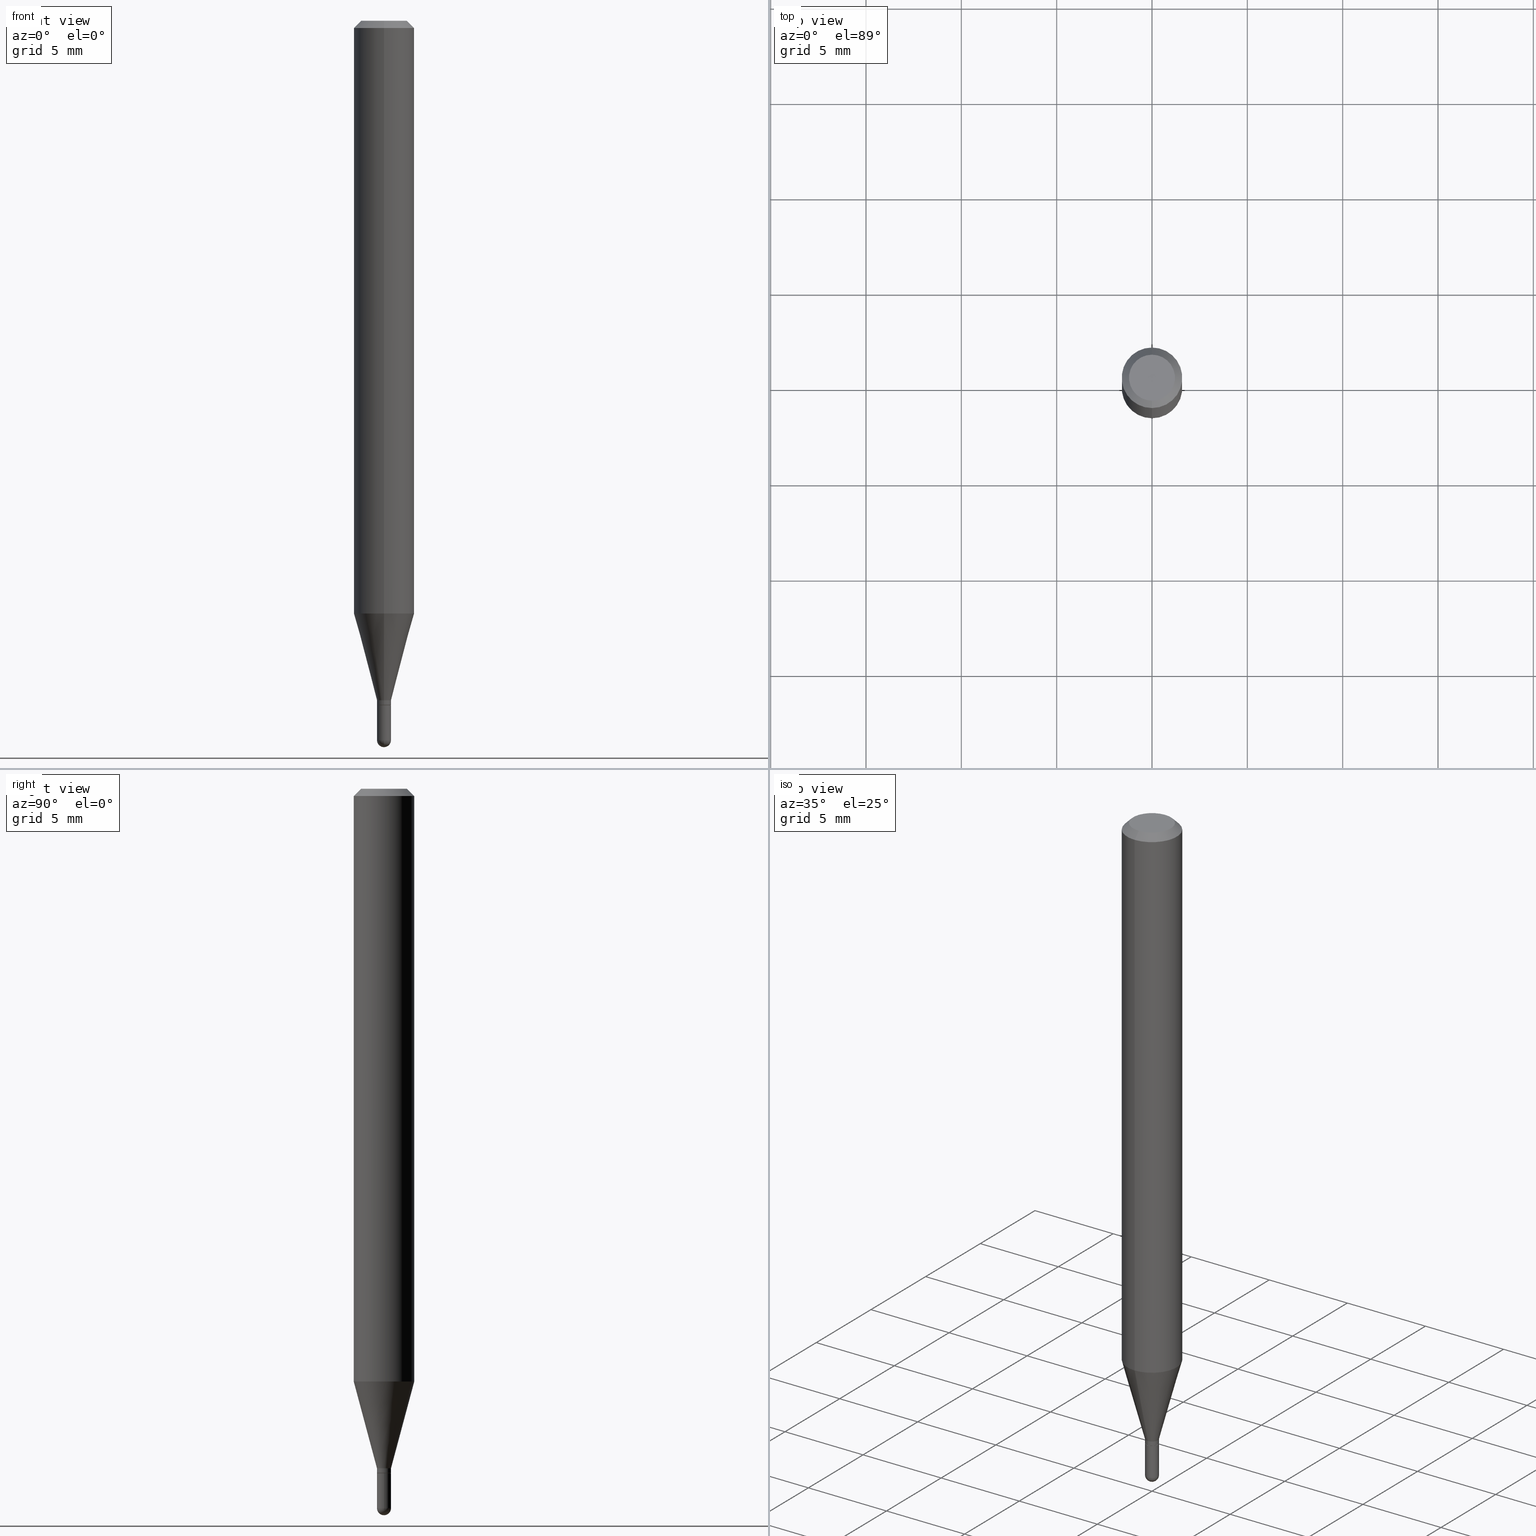
[diagram: canonical four-view strip — front | top / right | iso, engineering-drawing reading convention]
A machine part, canonical four-view strip (front | top / right | iso — engineering-drawing reading convention). The complete STEP part file that produces these views, byte-faithful:
ISO-10303-21;
HEADER;
FILE_DESCRIPTION (( 'STEP AP203' ),
    '1' );
FILE_NAME ('00467.STEP',
    '2024-03-07T17:58:51',
    ( '' ),
    ( '' ),
    'SwSTEP 2.0',
    'SolidWorks 2023',
    '' );
FILE_SCHEMA (( 'CONFIG_CONTROL_DESIGN' ));
ENDSEC;

DATA;
#1 = CIRCLE ( 'NONE', #28, 0.01449999999999992614 ) ;
#2 = AXIS2_PLACEMENT_3D ( 'NONE', #317, #277, #476 ) ;
#3 = LINE ( 'NONE', #252, #338 ) ;
#4 = LINE ( 'NONE', #95, #138 ) ;
#5 = ADVANCED_FACE ( 'NONE', ( #397 ), #146, .T. ) ;
#6 = DIRECTION ( 'NONE',  ( 2.445461630549588864E-29, -3.491491614761661422E-15, -1.000000000000000000 ) ) ;
#7 = CARTESIAN_POINT ( 'NONE',  ( -9.776147748757317543E-17, -0.01400000000000493558, -1.413000000000000256 ) ) ;
#8 = FACE_OUTER_BOUND ( 'NONE', #209, .T. ) ;
#9 = CONICAL_SURFACE ( 'NONE', #351, 0.01449999999999992441, 0.2617993877991505181 ) ;
#10 = ADVANCED_FACE ( 'NONE', ( #184 ), #40, .T. ) ;
#11 = ORGANIZATION ( 'UNSPECIFIED', 'UNSPECIFIED', '' ) ;
#12 = DIRECTION ( 'NONE',  ( -2.445468806185136597E-29, 3.491481338843145583E-15, 1.000000000000000000 ) ) ;
#13 = CALENDAR_DATE ( 2024, 7, 3 ) ;
#14 = ORIENTED_EDGE ( 'NONE', *, *, #21, .F. ) ;
#15 = PERSON_AND_ORGANIZATION_ROLE ( 'design_owner' ) ;
#16 = CARTESIAN_POINT ( 'NONE',  ( 3.455437283966569627E-29, -4.933477651658228496E-15, -1.413000000000000256 ) ) ;
#17 = CIRCLE ( 'NONE', #121, 0.01450000000000000074 ) ;
#18 = ORIENTED_EDGE ( 'NONE', *, *, #274, .F. ) ;
#19 = ORIENTED_EDGE ( 'NONE', *, *, #425, .T. ) ;
#20 = VERTEX_POINT ( 'NONE', #33 ) ;
#21 = EDGE_CURVE ( 'NONE', #322, #180, #152, .T. ) ;
#22 = FACE_OUTER_BOUND ( 'NONE', #50, .T. ) ;
#23 = EDGE_LOOP ( 'NONE', ( #424, #392, #384, #221 ) ) ;
#24 = VERTEX_POINT ( 'NONE', #394 ) ;
#25 = ORIENTED_EDGE ( 'NONE', *, *, #486, .T. ) ;
#26 = CARTESIAN_POINT ( 'NONE',  ( 1.012529588264854174E-16, 0.01449999999999506545, -1.413000000000000256 ) ) ;
#27 = DIRECTION ( 'NONE',  ( 1.000000000000000000, -6.982962677686265922E-15, 4.883557194083112340E-29 ) ) ;
#28 = AXIS2_PLACEMENT_3D ( 'NONE', #325, #320, #80 ) ;
#29 = LOCAL_TIME ( 12, 58, 51.00000000000000000, #348 ) ;
#30 = DIRECTION ( 'NONE',  ( 1.000000000000000000, -6.982962677686299054E-15, 0.000000000000000000 ) ) ;
#31 = ADVANCED_FACE ( 'NONE', ( #22 ), #464, .F. ) ;
#32 = DIRECTION ( 'NONE',  ( -2.445468806185136597E-29, 3.491481338843145583E-15, 1.000000000000000000 ) ) ;
#33 = CARTESIAN_POINT ( 'NONE',  ( 2.735589532676705169E-16, 0.01449999999999502555, -1.403000000000000025 ) ) ;
#34 = CARTESIAN_POINT ( 'NONE',  ( 3.632743911588020939E-29, -5.186595528851492996E-15, -1.485500000000000043 ) ) ;
#35 = EDGE_CURVE ( 'NONE', #335, #159, #505, .T. ) ;
#36 = ORIENTED_EDGE ( 'NONE', *, *, #21, .T. ) ;
#37 = DIRECTION ( 'NONE',  ( -2.445468806185136877E-29, 3.491481338843145188E-15, 1.000000000000000000 ) ) ;
#38 = CARTESIAN_POINT ( 'NONE',  ( 3.430982667661073565E-29, -4.898562735510612277E-15, -1.403000000000000025 ) ) ;
#39 = ADVANCED_FACE ( 'NONE', ( #353 ), #502, .T. ) ;
#40 = CONICAL_SURFACE ( 'NONE', #410, 0.06250000000000000000, 0.7853981633974483900 ) ;
#41 = AXIS2_PLACEMENT_3D ( 'NONE', #361, #475, #355 ) ;
#42 = CONICAL_SURFACE ( 'NONE', #417, 0.01400000000000000203, 0.7853981633974739252 ) ;
#43 = FACE_OUTER_BOUND ( 'NONE', #49, .T. ) ;
#44 = CARTESIAN_POINT ( 'NONE',  ( 2.166637795141839725E-46, -3.093402734052845134E-32, -8.859831485701589934E-18 ) ) ;
#45 = CARTESIAN_POINT ( 'NONE',  ( 4.440892098500922971E-16, 0.06249999999999571176, -1.223861561236694762 ) ) ;
#46 = PRODUCT_DEFINITION_SHAPE ( 'NONE', 'NONE',  #122 ) ;
#47 = CARTESIAN_POINT ( 'NONE',  ( 3.631503920468710854E-29, -5.188371266710256857E-15, -1.485500000000000043 ) ) ;
#48 = DIRECTION ( 'NONE',  ( 5.024295867788190974E-15, 0.7071067811865681119, 0.7071067811865270336 ) ) ;
#49 = EDGE_LOOP ( 'NONE', ( #413, #386, #436, #188 ) ) ;
#50 = EDGE_LOOP ( 'NONE', ( #307, #461 ) ) ;
#51 = CARTESIAN_POINT ( 'NONE',  ( 3.840629472727447874E-16, 0.04749999999999999362, -1.747056831868805136E-16 ) ) ;
#52 = EDGE_CURVE ( 'NONE', #245, #220, #109, .T. ) ;
#53 = CARTESIAN_POINT ( 'NONE',  ( 1.030286966852482683E-16, 0.01449999999999502555, -1.403000000000000025 ) ) ;
#54 = CARTESIAN_POINT ( 'NONE',  ( 3.668192445824385714E-31, -5.237237422142495831E-17, -0.01500000000000000812 ) ) ;
#55 = DIRECTION ( 'NONE',  ( -2.445461630549588864E-29, 3.491491614761661422E-15, 1.000000000000000000 ) ) ;
#56 = ORIENTED_EDGE ( 'NONE', *, *, #88, .T. ) ;
#57 = ADVANCED_FACE ( 'NONE', ( #210 ), #507, .T. ) ;
#58 = CARTESIAN_POINT ( 'NONE',  ( 3.455447423139598357E-29, -4.933463131785365512E-15, -1.413000000000000256 ) ) ;
#59 = CIRCLE ( 'NONE', #175, 0.01450000000000003890 ) ;
#60 = UNCERTAINTY_MEASURE_WITH_UNIT (LENGTH_MEASURE( 1.000000000000000082E-05 ), #438, 'distance_accuracy_value', 'NONE');
#61 = CIRCLE ( 'NONE', #111, 0.06250000000000000000 ) ;
#62 = APPROVAL_STATUS ( 'not_yet_approved' ) ;
#63 = ORIENTED_EDGE ( 'NONE', *, *, #511, .F. ) ;
#64 = ORIENTED_EDGE ( 'NONE', *, *, #52, .T. ) ;
#65 = DIRECTION ( 'NONE',  ( 0.000000000000000000, 0.000000000000000000, 1.000000000000000000 ) ) ;
#66 = COORDINATED_UNIVERSAL_TIME_OFFSET ( 5, 0, .BEHIND. ) ;
#67 = ORIENTED_EDGE ( 'NONE', *, *, #284, .F. ) ;
#68 = CONICAL_SURFACE ( 'NONE', #248, 0.06250000000000000000, 0.7853981633974483900 ) ;
#69 = APPROVAL_PERSON_ORGANIZATION ( #395, #292, #493 ) ;
#70 = CARTESIAN_POINT ( 'NONE',  ( 3.632743911588020939E-29, -5.186595528851492996E-15, -1.485500000000000043 ) ) ;
#71 =( NAMED_UNIT ( * ) SI_UNIT ( $, .STERADIAN. ) SOLID_ANGLE_UNIT ( ) );
#72 = DIRECTION ( 'NONE',  ( -6.982962677686266711E-15, -1.000000000000000000, 3.491491614761661422E-15 ) ) ;
#73 = DIRECTION ( 'NONE',  ( 1.000000000000000000, -6.982962677686299054E-15, 0.000000000000000000 ) ) ;
#74 = APPROVAL_PERSON_ORGANIZATION ( #454, #247, #308 ) ;
#75 = CARTESIAN_POINT ( 'NONE',  ( 2.166637795141839725E-46, -3.093402734052845134E-32, -8.859831485701589934E-18 ) ) ;
#76 = CARTESIAN_POINT ( 'NONE',  ( 3.667583213718050413E-29, -5.238109877194100108E-15, -1.500000000000000222 ) ) ;
#77 = EDGE_CURVE ( 'NONE', #322, #403, #238, .T. ) ;
#78 = DIRECTION ( 'NONE',  ( -2.445461630549588864E-29, 3.491491614761661422E-15, 1.000000000000000000 ) ) ;
#79 = DIRECTION ( 'NONE',  ( -6.982962677686265922E-15, -1.000000000000000000, 3.491491614761661816E-15 ) ) ;
#80 = DIRECTION ( 'NONE',  ( -6.982962677686265922E-15, -1.000000000000000000, 0.000000000000000000 ) ) ;
#81 = ORIENTED_EDGE ( 'NONE', *, *, #375, .T. ) ;
#82 = CARTESIAN_POINT ( 'NONE',  ( -0.01450000000000000074, 1.030286966852145322E-16, -7.132455880869613131E-31 ) ) ;
#83 = DIRECTION ( 'NONE',  ( -2.445461630549588864E-29, 3.491491614761661422E-15, 1.000000000000000000 ) ) ;
#84 = ORIENTED_EDGE ( 'NONE', *, *, #469, .F. ) ;
#85 = AXIS2_PLACEMENT_3D ( 'NONE', #190, #276, #465 ) ;
#86 = FACE_OUTER_BOUND ( 'NONE', #114, .T. ) ;
#87 = ADVANCED_FACE ( 'NONE', ( #43 ), #200, .T. ) ;
#88 = EDGE_CURVE ( 'NONE', #218, #180, #59, .T. ) ;
#89 = DIRECTION ( 'NONE',  ( -1.000000000000000000, 6.982962677686265922E-15, -4.883557194083112340E-29 ) ) ;
#90 = ORIENTED_EDGE ( 'NONE', *, *, #52, .F. ) ;
#91 = AXIS2_PLACEMENT_3D ( 'NONE', #422, #228, #30 ) ;
#92 = AXIS2_PLACEMENT_3D ( 'NONE', #401, #432, #280 ) ;
#93 = CC_DESIGN_PERSON_AND_ORGANIZATION_ASSIGNMENT ( #459, #266, ( #445 ) ) ;
#94 = PRODUCT_RELATED_PRODUCT_CATEGORY ( 'detail', '', ( #509 ) ) ;
#95 = CARTESIAN_POINT ( 'NONE',  ( 1.030286966852139652E-16, 0.01449999999999992441, -5.062662841404383054E-17 ) ) ;
#96 = VERTEX_POINT ( 'NONE', #51 ) ;
#97 = CARTESIAN_POINT ( 'NONE',  ( 3.430982667661073565E-29, -4.898562735510612277E-15, -1.403000000000000025 ) ) ;
#98 = VERTEX_POINT ( 'NONE', #207 ) ;
#99 = ADVANCED_FACE ( 'NONE', ( #8 ), #68, .T. ) ;
#100 = DIRECTION ( 'NONE',  ( 6.982962677686265922E-15, 1.000000000000000000, 0.000000000000000000 ) ) ;
#101 = APPROVAL_DATE_TIME ( #145, #247 ) ;
#102 = AXIS2_PLACEMENT_3D ( 'NONE', #500, #27, #164 ) ;
#103 = LOCAL_TIME ( 12, 58, 51.00000000000000000, #66 ) ;
#104 = ORIENTED_EDGE ( 'NONE', *, *, #453, .F. ) ;
#105 = ORIENTED_EDGE ( 'NONE', *, *, #357, .F. ) ;
#106 = CARTESIAN_POINT ( 'NONE',  ( -1.030286966851783185E-16, -0.01450000000000520838, -1.485500000000000043 ) ) ;
#107 = PERSON_AND_ORGANIZATION_ROLE ( 'creator' ) ;
#108 = ORIENTED_EDGE ( 'NONE', *, *, #284, .T. ) ;
#109 = CIRCLE ( 'NONE', #498, 0.06250000000000000000 ) ;
#110 = DATE_TIME_ROLE ( 'classification_date' ) ;
#111 = AXIS2_PLACEMENT_3D ( 'NONE', #132, #376, #512 ) ;
#112 = ADVANCED_BREP_SHAPE_REPRESENTATION ( '00467', ( #202, #383, #337 ), #259 ) ;
#113 = VECTOR ( 'NONE', #48, 39.37007874015748143 ) ;
#114 = EDGE_LOOP ( 'NONE', ( #64, #490, #419, #321 ) ) ;
#115 = DIRECTION ( 'NONE',  ( -6.982962677686265922E-15, -1.000000000000000000, 0.000000000000000000 ) ) ;
#116 = DIRECTION ( 'NONE',  ( -2.445461630549588864E-29, 3.491491614761661422E-15, 1.000000000000000000 ) ) ;
#117 = CARTESIAN_POINT ( 'NONE',  ( 4.364351673553919652E-16, 0.06249999999999995143, -0.01500000000000022669 ) ) ;
#118 = ADVANCED_FACE ( 'NONE', ( #484 ), #9, .T. ) ;
#119 = CARTESIAN_POINT ( 'NONE',  ( 0.000000000000000000, 0.000000000000000000, 0.000000000000000000 ) ) ;
#120 = VECTOR ( 'NONE', #429, 39.37007874015748143 ) ;
#121 = AXIS2_PLACEMENT_3D ( 'NONE', #58, #12, #446 ) ;
#122 = PRODUCT_DEFINITION ( 'UNKNOWN', '', #445, #381 ) ;
#123 = CARTESIAN_POINT ( 'NONE',  ( 3.632743911588020939E-29, -5.186595528851492996E-15, -1.485500000000000043 ) ) ;
#124 = ORIENTED_EDGE ( 'NONE', *, *, #166, .T. ) ;
#125 = DIRECTION ( 'NONE',  ( -2.445468806185136597E-29, 3.491481338843145583E-15, 1.000000000000000000 ) ) ;
#126 = VERTEX_POINT ( 'NONE', #179 ) ;
#127 = CARTESIAN_POINT ( 'NONE',  ( 0.01450000000000000074, -5.161282289144880799E-15, -1.485500000000000043 ) ) ;
#128 = CARTESIAN_POINT ( 'NONE',  ( 0.000000000000000000, 0.000000000000000000, 0.000000000000000000 ) ) ;
#129 = DIRECTION ( 'NONE',  ( -2.445461630549588864E-29, 3.491491614761661816E-15, 1.000000000000000000 ) ) ;
#130 = AXIS2_PLACEMENT_3D ( 'NONE', #16, #423, #275 ) ;
#131 = CIRCLE ( 'NONE', #431, 0.04749999999999999362 ) ;
#132 = CARTESIAN_POINT ( 'NONE',  ( 2.992906489108852516E-29, -4.273102378687034425E-15, -1.223861561236694540 ) ) ;
#133 = DIRECTION ( 'NONE',  ( 1.839019923739601893E-15, 0.2588190451025252359, 0.9659258262890670910 ) ) ;
#134 = LENGTH_MEASURE_WITH_UNIT ( LENGTH_MEASURE( 0.02539999999999999897 ), #287 );
#135 = EDGE_LOOP ( 'NONE', ( #440, #261, #197, #457 ) ) ;
#136 = DIRECTION ( 'NONE',  ( 6.982962677686265922E-15, 1.000000000000000000, -3.483106191921935554E-15 ) ) ;
#137 = AXIS2_PLACEMENT_3D ( 'NONE', #123, #352, #73 ) ;
#138 = VECTOR ( 'NONE', #282, 39.37007874015748143 ) ;
#139 = CYLINDRICAL_SURFACE ( 'NONE', #473, 0.06250000000000000000 ) ;
#140 = ORIENTED_EDGE ( 'NONE', *, *, #380, .F. ) ;
#141 = DIRECTION ( 'NONE',  ( 1.000000000000000000, 0.000000000000000000, 0.000000000000000000 ) ) ;
#142 = VERTEX_POINT ( 'NONE', #253 ) ;
#143 = AXIS2_PLACEMENT_3D ( 'NONE', #119, #32, #508 ) ;
#144 = CONICAL_SURFACE ( 'NONE', #2, 0.01449999999999992441, 0.2617993877991505181 ) ;
#145 = DATE_AND_TIME ( #219, #29 ) ;
#146 = SPHERICAL_SURFACE ( 'NONE', #199, 0.01450000000000003890 ) ;
#147 = DIRECTION ( 'NONE',  ( -2.445461630549588864E-29, 3.491491614761661422E-15, 1.000000000000000000 ) ) ;
#148 = CC_DESIGN_PERSON_AND_ORGANIZATION_ASSIGNMENT ( #449, #15, ( #509 ) ) ;
#149 = DATE_AND_TIME ( #13, #234 ) ;
#150 = ORIENTED_EDGE ( 'NONE', *, *, #324, .F. ) ;
#151 = MECHANICAL_CONTEXT ( 'NONE', #485, 'mechanical' ) ;
#152 = CIRCLE ( 'NONE', #460, 0.01450000000000000074 ) ;
#153 = EDGE_LOOP ( 'NONE', ( #356, #477, #231, #389, #264 ) ) ;
#154 = DIRECTION ( 'NONE',  ( 2.438088387897960049E-29, -3.491481338843145188E-15, -1.000000000000000000 ) ) ;
#155 = LINE ( 'NONE', #198, #269 ) ;
#156 = EDGE_LOOP ( 'NONE', ( #18, #56, #14, #487 ) ) ;
#157 = VERTEX_POINT ( 'NONE', #377 ) ;
#158 = DIRECTION ( 'NONE',  ( -1.807323732225331717E-15, -0.2588190451025184080, 0.9659258262890689783 ) ) ;
#159 = VERTEX_POINT ( 'NONE', #341 ) ;
#160 = DIRECTION ( 'NONE',  ( -2.445461630549588864E-29, 3.491491614761661816E-15, 1.000000000000000000 ) ) ;
#161 = AXIS2_PLACEMENT_3D ( 'NONE', #174, #171, #285 ) ;
#162 = FACE_OUTER_BOUND ( 'NONE', #23, .T. ) ;
#163 = LOCAL_TIME ( 12, 58, 51.00000000000000000, #216 ) ;
#164 = DIRECTION ( 'NONE',  ( 6.982962677686265922E-15, 1.000000000000000000, 0.000000000000000000 ) ) ;
#165 = CYLINDRICAL_SURFACE ( 'NONE', #143, 0.01450000000000000074 ) ;
#166 = EDGE_CURVE ( 'NONE', #142, #96, #344, .T. ) ;
#167 = FACE_OUTER_BOUND ( 'NONE', #217, .T. ) ;
#168 = CIRCLE ( 'NONE', #258, 0.01449999999999992441 ) ;
#169 = AXIS2_PLACEMENT_3D ( 'NONE', #366, #439, #250 ) ;
#170 = CARTESIAN_POINT ( 'NONE',  ( 0.000000000000000000, 0.000000000000000000, 0.000000000000000000 ) ) ;
#171 = DIRECTION ( 'NONE',  ( -2.445461630549588864E-29, 3.491491614761661422E-15, 1.000000000000000000 ) ) ;
#172 = DIRECTION ( 'NONE',  ( 1.000000000000000000, -6.982962677686266711E-15, 4.876176775795935793E-29 ) ) ;
#173 = FACE_OUTER_BOUND ( 'NONE', #153, .T. ) ;
#174 = CARTESIAN_POINT ( 'NONE',  ( 3.455437283966569627E-29, -4.933477651658228496E-15, -1.413000000000000256 ) ) ;
#175 = AXIS2_PLACEMENT_3D ( 'NONE', #47, #332, #409 ) ;
#176 = DIRECTION ( 'NONE',  ( -6.982962677686265922E-15, -1.000000000000000000, 3.491491614761661422E-15 ) ) ;
#177 = CIRCLE ( 'NONE', #499, 0.01449999999999992441 ) ;
#178 = COORDINATED_UNIVERSAL_TIME_OFFSET ( 5, 0, .BEHIND. ) ;
#179 = CARTESIAN_POINT ( 'NONE',  ( 1.030286966852481820E-16, 0.01449999999999494402, -1.412500000000000311 ) ) ;
#180 = VERTEX_POINT ( 'NONE', #106 ) ;
#181 = EDGE_CURVE ( 'NONE', #24, #322, #309, .T. ) ;
#182 = PERSON_AND_ORGANIZATION ( #450, #11 ) ;
#183 = ORIENTED_EDGE ( 'NONE', *, *, #387, .F. ) ;
#184 = FACE_OUTER_BOUND ( 'NONE', #373, .T. ) ;
#185 = PERSON_AND_ORGANIZATION ( #450, #11 ) ;
#186 = EDGE_LOOP ( 'NONE', ( #483, #124 ) ) ;
#187 = EDGE_LOOP ( 'NONE', ( #63, #501, #379, #340 ) ) ;
#188 = ORIENTED_EDGE ( 'NONE', *, *, #375, .F. ) ;
#189 = CIRCLE ( 'NONE', #130, 0.01400000000000000203 ) ;
#190 = CARTESIAN_POINT ( 'NONE',  ( 3.455437283966569627E-29, -4.933477651658228496E-15, -1.413000000000000256 ) ) ;
#191 = APPROVAL ( #345, 'UNSPECIFIED' ) ;
#192 = DIRECTION ( 'NONE',  ( -6.982962677686265922E-15, -1.000000000000000000, 3.483106191921935554E-15 ) ) ;
#193 = LINE ( 'NONE', #117, #120 ) ;
#194 = EDGE_LOOP ( 'NONE', ( #372, #140 ) ) ;
#195 = EDGE_CURVE ( 'NONE', #98, #157, #189, .T. ) ;
#196 = CARTESIAN_POINT ( 'NONE',  ( -4.364351673553912750E-16, -0.06250000000000005551, -0.01499999999999979128 ) ) ;
#197 = ORIENTED_EDGE ( 'NONE', *, *, #315, .F. ) ;
#198 = CARTESIAN_POINT ( 'NONE',  ( -4.287811248607203282E-16, -0.06250000000000005551, -0.01499999999999979128 ) ) ;
#199 = AXIS2_PLACEMENT_3D ( 'NONE', #303, #455, #223 ) ;
#200 = CYLINDRICAL_SURFACE ( 'NONE', #319, 0.01449999999999992441 ) ;
#201 = CARTESIAN_POINT ( 'NONE',  ( -4.364351673553617913E-16, -0.06250000000000427436, -1.223861561236694095 ) ) ;
#202 = MANIFOLD_SOLID_BREP ( 'Body-Move/Copy2[1]', #214 ) ;
#203 = LINE ( 'NONE', #286, #404 ) ;
#204 = VECTOR ( 'NONE', #396, 39.37007874015748143 ) ;
#205 = VECTOR ( 'NONE', #293, 39.37007874015748143 ) ;
#206 = CARTESIAN_POINT ( 'NONE',  ( 2.992906489108852516E-29, -4.273102378687034425E-15, -1.223861561236694540 ) ) ;
#207 = CARTESIAN_POINT ( 'NONE',  ( -9.776147748757317543E-17, -0.01400000000000493558, -1.413000000000000256 ) ) ;
#208 = LINE ( 'NONE', #7, #205 ) ;
#209 = EDGE_LOOP ( 'NONE', ( #67, #183, #226, #346 ) ) ;
#210 = FACE_OUTER_BOUND ( 'NONE', #447, .T. ) ;
#211 = PLANE ( 'NONE',  #283 ) ;
#212 = ORIENTED_EDGE ( 'NONE', *, *, #453, .T. ) ;
#213 = CARTESIAN_POINT ( 'NONE',  ( 3.316907271900976096E-16, 0.04749999999999999362, -1.702757674440297279E-16 ) ) ;
#214 = CLOSED_SHELL ( 'NONE', ( #481, #496, #31, #5, #326 ) ) ;
#215 = CIRCLE ( 'NONE', #92, 0.06250000000000000000 ) ;
#216 = COORDINATED_UNIVERSAL_TIME_OFFSET ( 5, 0, .BEHIND. ) ;
#217 = EDGE_LOOP ( 'NONE', ( #318, #25, #84, #297 ) ) ;
#218 = VERTEX_POINT ( 'NONE', #76 ) ;
#219 = CALENDAR_DATE ( 2024, 7, 3 ) ;
#220 = VERTEX_POINT ( 'NONE', #45 ) ;
#221 = ORIENTED_EDGE ( 'NONE', *, *, #265, .F. ) ;
#222 = APPROVAL_DATE_TIME ( #426, #191 ) ;
#223 = DIRECTION ( 'NONE',  ( 6.982962677686265922E-15, 1.000000000000000000, 0.000000000000000000 ) ) ;
#224 = CIRCLE ( 'NONE', #169, 0.01449999999999992614 ) ;
#225 = PERSON_AND_ORGANIZATION ( #450, #11 ) ;
#226 = ORIENTED_EDGE ( 'NONE', *, *, #324, .T. ) ;
#227 = DIRECTION ( 'NONE',  ( 1.000000000000000000, -6.982962677686299054E-15, 0.000000000000000000 ) ) ;
#228 = DIRECTION ( 'NONE',  ( -2.445468806185136597E-29, 3.491481338843145583E-15, 1.000000000000000000 ) ) ;
#229 = DIRECTION ( 'NONE',  ( -2.445461630549588864E-29, 3.491491614761661422E-15, 1.000000000000000000 ) ) ;
#230 = FACE_OUTER_BOUND ( 'NONE', #186, .T. ) ;
#231 = ORIENTED_EDGE ( 'NONE', *, *, #471, .F. ) ;
#232 = AXIS2_PLACEMENT_3D ( 'NONE', #246, #229, #176 ) ;
#233 = ADVANCED_FACE ( 'NONE', ( #162 ), #360, .T. ) ;
#234 = LOCAL_TIME ( 12, 58, 51.00000000000000000, #178 ) ;
#235 = FACE_OUTER_BOUND ( 'NONE', #463, .T. ) ;
#236 = VERTEX_POINT ( 'NONE', #127 ) ;
#237 = DIRECTION ( 'NONE',  ( -6.982962677686265922E-15, -1.000000000000000000, 0.000000000000000000 ) ) ;
#238 = LINE ( 'NONE', #82, #281 ) ;
#239 = FACE_OUTER_BOUND ( 'NONE', #251, .T. ) ;
#240 = ADVANCED_FACE ( 'NONE', ( #468 ), #470, .F. ) ;
#241 = AXIS2_PLACEMENT_3D ( 'NONE', #75, #147, #310 ) ;
#242 = DIRECTION ( 'NONE',  ( -2.445461630549588864E-29, 3.491491614761661422E-15, 1.000000000000000000 ) ) ;
#243 = CYLINDRICAL_SURFACE ( 'NONE', #462, 0.01450000000000000074 ) ;
#244 = CARTESIAN_POINT ( 'NONE',  ( 0.000000000000000000, 0.000000000000000000, 0.000000000000000000 ) ) ;
#245 = VERTEX_POINT ( 'NONE', #201 ) ;
#246 = CARTESIAN_POINT ( 'NONE',  ( 0.000000000000000000, 0.000000000000000000, 0.000000000000000000 ) ) ;
#247 = APPROVAL ( #62, 'UNSPECIFIED' ) ;
#248 = AXIS2_PLACEMENT_3D ( 'NONE', #54, #6, #136 ) ;
#249 = CC_DESIGN_APPROVAL ( #292, ( #506 ) ) ;
#250 = DIRECTION ( 'NONE',  ( -6.982962677686265922E-15, -1.000000000000000000, 0.000000000000000000 ) ) ;
#251 = EDGE_LOOP ( 'NONE', ( #104, #81, #294, #362 ) ) ;
#252 = CARTESIAN_POINT ( 'NONE',  ( 4.440892098500625669E-16, 0.06250000000000000000, -2.182182259226038389E-16 ) ) ;
#253 = CARTESIAN_POINT ( 'NONE',  ( -3.773273898774340269E-16, -0.04749999999999999362, 1.569860202154772968E-16 ) ) ;
#254 = ORIENTED_EDGE ( 'NONE', *, *, #300, .F. ) ;
#255 = CALENDAR_DATE ( 2024, 7, 3 ) ;
#256 = CC_DESIGN_PERSON_AND_ORGANIZATION_ASSIGNMENT ( #382, #262, ( #122 ) ) ;
#257 = EDGE_CURVE ( 'NONE', #180, #236, #479, .T. ) ;
#258 = AXIS2_PLACEMENT_3D ( 'NONE', #504, #83, #313 ) ;
#259 =( GEOMETRIC_REPRESENTATION_CONTEXT ( 3 ) GLOBAL_UNCERTAINTY_ASSIGNED_CONTEXT ( ( #60 ) ) GLOBAL_UNIT_ASSIGNED_CONTEXT ( ( #438, #406, #71 ) ) REPRESENTATION_CONTEXT ( 'NONE', 'WORKASPACE' ) );
#260 = CALENDAR_DATE ( 2024, 7, 3 ) ;
#261 = ORIENTED_EDGE ( 'NONE', *, *, #274, .T. ) ;
#262 = PERSON_AND_ORGANIZATION_ROLE ( 'creator' ) ;
#263 = EDGE_CURVE ( 'NONE', #314, #20, #168, .T. ) ;
#264 = ORIENTED_EDGE ( 'NONE', *, *, #315, .T. ) ;
#265 = EDGE_CURVE ( 'NONE', #126, #347, #1, .T. ) ;
#266 = PERSON_AND_ORGANIZATION_ROLE ( 'design_supplier' ) ;
#267 = ORIENTED_EDGE ( 'NONE', *, *, #166, .F. ) ;
#268 = CIRCLE ( 'NONE', #299, 0.01450000000000000074 ) ;
#269 = VECTOR ( 'NONE', #437, 39.37007874015748143 ) ;
#270 = VECTOR ( 'NONE', #133, 39.37007874015748854 ) ;
#271 = SECURITY_CLASSIFICATION_LEVEL ( 'unclassified' ) ;
#272 = CC_DESIGN_DATE_AND_TIME_ASSIGNMENT ( #421, #391, ( #122 ) ) ;
#273 = CARTESIAN_POINT ( 'NONE',  ( -0.01450000000000000074, -4.957000633633214635E-15, -1.485500000000000043 ) ) ;
#274 = EDGE_CURVE ( 'NONE', #218, #24, #329, .T. ) ;
#275 = DIRECTION ( 'NONE',  ( -6.982962677686265922E-15, -1.000000000000000000, 0.000000000000000000 ) ) ;
#276 = DIRECTION ( 'NONE',  ( -2.445461630549588584E-29, 3.491491614761661816E-15, 1.000000000000000000 ) ) ;
#277 = DIRECTION ( 'NONE',  ( -2.445461630549588864E-29, 3.491491614761661422E-15, 1.000000000000000000 ) ) ;
#278 = ORIENTED_EDGE ( 'NONE', *, *, #77, .F. ) ;
#279 = LINE ( 'NONE', #435, #204 ) ;
#280 = DIRECTION ( 'NONE',  ( -6.982962677686265922E-15, -1.000000000000000000, 3.483106191921935554E-15 ) ) ;
#281 = VECTOR ( 'NONE', #37, 39.37007874015748143 ) ;
#282 = DIRECTION ( 'NONE',  ( -2.445461630549588864E-29, 3.491491614761661816E-15, 1.000000000000000000 ) ) ;
#283 = AXIS2_PLACEMENT_3D ( 'NONE', #213, #482, #288 ) ;
#284 = EDGE_CURVE ( 'NONE', #142, #335, #155, .T. ) ;
#285 = DIRECTION ( 'NONE',  ( -6.982962677686265922E-15, -1.000000000000000000, 0.000000000000000000 ) ) ;
#286 = CARTESIAN_POINT ( 'NONE',  ( -1.012529588264503255E-16, -0.01449999999999992441, 5.062662841404383054E-17 ) ) ;
#287 =( LENGTH_UNIT ( ) NAMED_UNIT ( * ) SI_UNIT ( $, .METRE. ) );
#288 = DIRECTION ( 'NONE',  ( 6.982962677686265922E-15, 1.000000000000000000, -3.491491614761661816E-15 ) ) ;
#289 = ORIENTED_EDGE ( 'NONE', *, *, #263, .F. ) ;
#290 = AXIS2_PLACEMENT_3D ( 'NONE', #474, #434, #79 ) ;
#291 = LOCAL_TIME ( 12, 58, 51.00000000000000000, #385 ) ;
#292 = APPROVAL ( #388, 'UNSPECIFIED' ) ;
#293 = DIRECTION ( 'NONE',  ( -4.937700262164674260E-15, -0.7071067811865632269, 0.7071067811865319186 ) ) ;
#294 = ORIENTED_EDGE ( 'NONE', *, *, #357, .T. ) ;
#295 = DIRECTION ( 'NONE',  ( -6.982962677686265922E-15, -1.000000000000000000, 0.000000000000000000 ) ) ;
#296 = DIRECTION ( 'NONE',  ( -2.445461630549588864E-29, 3.491491614761661422E-15, 1.000000000000000000 ) ) ;
#297 = ORIENTED_EDGE ( 'NONE', *, *, #458, .F. ) ;
#298 = APPLICATION_PROTOCOL_DEFINITION ( 'international standard', 'config_control_design', 1994, #485 ) ;
#299 = AXIS2_PLACEMENT_3D ( 'NONE', #34, #125, #467 ) ;
#300 = EDGE_CURVE ( 'NONE', #403, #495, #451, .T. ) ;
#301 = CIRCLE ( 'NONE', #378, 0.01400000000000000203 ) ;
#302 = CARTESIAN_POINT ( 'NONE',  ( 0.000000000000000000, 0.000000000000000000, 0.000000000000000000 ) ) ;
#303 = CARTESIAN_POINT ( 'NONE',  ( 3.631503920468710854E-29, -5.188371266710256857E-15, -1.485500000000000043 ) ) ;
#304 = DIRECTION ( 'NONE',  ( 6.982962677686265922E-15, 1.000000000000000000, -3.483106191921935554E-15 ) ) ;
#305 = APPLICATION_PROTOCOL_DEFINITION ( 'international standard', 'config_control_design', 1994, #306 ) ;
#306 = APPLICATION_CONTEXT ( 'configuration controlled 3d designs of mechanical parts and assemblies' ) ;
#307 = ORIENTED_EDGE ( 'NONE', *, *, #471, .T. ) ;
#308 = APPROVAL_ROLE ( '' ) ;
#309 = CIRCLE ( 'NONE', #91, 0.01450000000000000074 ) ;
#310 = DIRECTION ( 'NONE',  ( -6.982962677686266711E-15, -1.000000000000000000, 3.491491614761661422E-15 ) ) ;
#311 = CC_DESIGN_SECURITY_CLASSIFICATION ( #506, ( #445 ) ) ;
#312 = DIRECTION ( 'NONE',  ( -1.000000000000000000, 6.982962677686265922E-15, -4.876176775795935793E-29 ) ) ;
#313 = DIRECTION ( 'NONE',  ( -6.982962677686265922E-15, -1.000000000000000000, 0.000000000000000000 ) ) ;
#314 = VERTEX_POINT ( 'NONE', #398 ) ;
#315 = EDGE_CURVE ( 'NONE', #236, #24, #268, .T. ) ;
#316 = ORIENTED_EDGE ( 'NONE', *, *, #469, .T. ) ;
#317 = CARTESIAN_POINT ( 'NONE',  ( 3.430982667661073565E-29, -4.898562735510612277E-15, -1.403000000000000025 ) ) ;
#318 = ORIENTED_EDGE ( 'NONE', *, *, #195, .T. ) ;
#319 = AXIS2_PLACEMENT_3D ( 'NONE', #128, #296, #443 ) ;
#320 = DIRECTION ( 'NONE',  ( -2.445461630549588864E-29, 3.491491614761661422E-15, 1.000000000000000000 ) ) ;
#321 = ORIENTED_EDGE ( 'NONE', *, *, #354, .F. ) ;
#322 = VERTEX_POINT ( 'NONE', #273 ) ;
#323 = CC_DESIGN_PERSON_AND_ORGANIZATION_ASSIGNMENT ( #185, #107, ( #445 ) ) ;
#324 = EDGE_CURVE ( 'NONE', #96, #159, #193, .T. ) ;
#325 = CARTESIAN_POINT ( 'NONE',  ( 3.454214553151295273E-29, -4.931731905850847843E-15, -1.412500000000000311 ) ) ;
#326 = ADVANCED_FACE ( 'NONE', ( #235 ), #165, .T. ) ;
#327 = LINE ( 'NONE', #371, #113 ) ;
#328 = CC_DESIGN_PERSON_AND_ORGANIZATION_ASSIGNMENT ( #182, #418, ( #506 ) ) ;
#329 = CIRCLE ( 'NONE', #102, 0.01450000000000003890 ) ;
#330 = LINE ( 'NONE', #53, #270 ) ;
#331 = APPROVAL_PERSON_ORGANIZATION ( #225, #191, #456 ) ;
#332 = DIRECTION ( 'NONE',  ( -1.000000000000000000, 7.105427357601001070E-15, -4.926315508542082329E-29 ) ) ;
#333 = FACE_OUTER_BOUND ( 'NONE', #156, .T. ) ;
#334 = CARTESIAN_POINT ( 'NONE',  ( 0.01450000000000000074, -5.034716090611816663E-15, -1.413000000000000256 ) ) ;
#335 = VERTEX_POINT ( 'NONE', #196 ) ;
#336 = CLOSED_SHELL ( 'NONE', ( #57, #433, #10, #428, #118, #365, #39, #99, #393, #240, #233, #87 ) ) ;
#337 = AXIS2_PLACEMENT_3D ( 'NONE', #302, #65, #141 ) ;
#338 = VECTOR ( 'NONE', #129, 39.37007874015748143 ) ;
#339 = APPROVAL_DATE_TIME ( #149, #292 ) ;
#340 = ORIENTED_EDGE ( 'NONE', *, *, #367, .F. ) ;
#341 = CARTESIAN_POINT ( 'NONE',  ( 4.440892098500927901E-16, 0.06249999999999995837, -0.01500000000000022669 ) ) ;
#342 = EDGE_LOOP ( 'NONE', ( #408, #212, #90, #105 ) ) ;
#343 = DATE_AND_TIME ( #497, #291 ) ;
#344 = CIRCLE ( 'NONE', #241, 0.04749999999999999362 ) ;
#345 = APPROVAL_STATUS ( 'not_yet_approved' ) ;
#346 = ORIENTED_EDGE ( 'NONE', *, *, #367, .T. ) ;
#347 = VERTEX_POINT ( 'NONE', #364 ) ;
#348 = COORDINATED_UNIVERSAL_TIME_OFFSET ( 5, 0, .BEHIND. ) ;
#349 = DIRECTION ( 'NONE',  ( 2.445461630549588864E-29, -3.491491614761661422E-15, -1.000000000000000000 ) ) ;
#350 = DIRECTION ( 'NONE',  ( -2.445468806185136597E-29, 3.491481338843145583E-15, 1.000000000000000000 ) ) ;
#351 = AXIS2_PLACEMENT_3D ( 'NONE', #97, #415, #295 ) ;
#352 = DIRECTION ( 'NONE',  ( -2.445468806185136597E-29, 3.491481338843145583E-15, 1.000000000000000000 ) ) ;
#353 = FACE_OUTER_BOUND ( 'NONE', #187, .T. ) ;
#354 = EDGE_CURVE ( 'NONE', #245, #335, #510, .T. ) ;
#355 = DIRECTION ( 'NONE',  ( 1.000000000000000000, -6.982962677686299054E-15, 0.000000000000000000 ) ) ;
#356 = ORIENTED_EDGE ( 'NONE', *, *, #181, .T. ) ;
#357 = EDGE_CURVE ( 'NONE', #314, #245, #400, .T. ) ;
#358 = CARTESIAN_POINT ( 'NONE',  ( -4.364351673553916201E-16, -0.06250000000000000000, 2.182182259226038389E-16 ) ) ;
#359 = ORIENTED_EDGE ( 'NONE', *, *, #257, .T. ) ;
#360 = CONICAL_SURFACE ( 'NONE', #161, 0.01400000000000000203, 0.7853981633974739252 ) ;
#361 = CARTESIAN_POINT ( 'NONE',  ( 3.455447423139598357E-29, -4.933463131785365512E-15, -1.413000000000000256 ) ) ;
#362 = ORIENTED_EDGE ( 'NONE', *, *, #420, .F. ) ;
#363 = EDGE_CURVE ( 'NONE', #236, #495, #279, .T. ) ;
#364 = CARTESIAN_POINT ( 'NONE',  ( -1.012529588264161333E-16, -0.01450000000000490653, -1.412500000000000311 ) ) ;
#365 = ADVANCED_FACE ( 'NONE', ( #239 ), #144, .T. ) ;
#366 = CARTESIAN_POINT ( 'NONE',  ( 3.454214553151295273E-29, -4.931731905850847843E-15, -1.412500000000000311 ) ) ;
#367 = EDGE_CURVE ( 'NONE', #159, #335, #215, .T. ) ;
#368 = VECTOR ( 'NONE', #160, 39.37007874015748143 ) ;
#369 = SPHERICAL_SURFACE ( 'NONE', #412, 0.01450000000000003890 ) ;
#370 = DIRECTION ( 'NONE',  ( -6.982962677686265922E-15, -1.000000000000000000, 4.370956789862821150E-15 ) ) ;
#371 = CARTESIAN_POINT ( 'NONE',  ( 9.947598300644857774E-17, 0.01399999999999506674, -1.413000000000000256 ) ) ;
#372 = ORIENTED_EDGE ( 'NONE', *, *, #195, .F. ) ;
#373 = EDGE_LOOP ( 'NONE', ( #267, #108, #402, #150 ) ) ;
#374 = CARTESIAN_POINT ( 'NONE',  ( 3.455437283966569627E-29, -4.933477651658228496E-15, -1.413000000000000256 ) ) ;
#375 = EDGE_CURVE ( 'NONE', #20, #314, #177, .T. ) ;
#376 = DIRECTION ( 'NONE',  ( -2.445461630549588864E-29, 3.491491614761661422E-15, 1.000000000000000000 ) ) ;
#377 = CARTESIAN_POINT ( 'NONE',  ( 1.012523398458485463E-16, 0.01399999999999506674, -1.413000000000000256 ) ) ;
#378 = AXIS2_PLACEMENT_3D ( 'NONE', #405, #78, #237 ) ;
#379 = ORIENTED_EDGE ( 'NONE', *, *, #354, .T. ) ;
#380 = EDGE_CURVE ( 'NONE', #157, #98, #301, .T. ) ;
#381 = DESIGN_CONTEXT ( 'detailed design', #306, 'design' ) ;
#382 = PERSON_AND_ORGANIZATION ( #450, #11 ) ;
#383 = MANIFOLD_SOLID_BREP ( 'Body-Move/Copy2[2]', #336 ) ;
#384 = ORIENTED_EDGE ( 'NONE', *, *, #458, .T. ) ;
#385 = COORDINATED_UNIVERSAL_TIME_OFFSET ( 5, 0, .BEHIND. ) ;
#386 = ORIENTED_EDGE ( 'NONE', *, *, #265, .T. ) ;
#387 = EDGE_CURVE ( 'NONE', #96, #142, #131, .T. ) ;
#388 = APPROVAL_STATUS ( 'not_yet_approved' ) ;
#389 = ORIENTED_EDGE ( 'NONE', *, *, #363, .F. ) ;
#390 = AXIS2_PLACEMENT_3D ( 'NONE', #26, #154, #312 ) ;
#391 = DATE_TIME_ROLE ( 'creation_date' ) ;
#392 = ORIENTED_EDGE ( 'NONE', *, *, #380, .T. ) ;
#393 = ADVANCED_FACE ( 'NONE', ( #230 ), #211, .F. ) ;
#394 = CARTESIAN_POINT ( 'NONE',  ( 1.012529588264873156E-16, 0.01449999999999483126, -1.485500000000000043 ) ) ;
#395 = PERSON_AND_ORGANIZATION ( #450, #11 ) ;
#396 = DIRECTION ( 'NONE',  ( -2.445468806185136877E-29, 3.491481338843145188E-15, 1.000000000000000000 ) ) ;
#397 = FACE_OUTER_BOUND ( 'NONE', #135, .T. ) ;
#398 = CARTESIAN_POINT ( 'NONE',  ( -1.012529588264160223E-16, -0.01450000000000482153, -1.403000000000000025 ) ) ;
#399 = ORIENTED_EDGE ( 'NONE', *, *, #363, .T. ) ;
#400 = LINE ( 'NONE', #503, #430 ) ;
#401 = CARTESIAN_POINT ( 'NONE',  ( 3.668192445824385714E-31, -5.237237422142495831E-17, -0.01500000000000000812 ) ) ;
#402 = ORIENTED_EDGE ( 'NONE', *, *, #35, .T. ) ;
#403 = VERTEX_POINT ( 'NONE', #414 ) ;
#404 = VECTOR ( 'NONE', #480, 39.37007874015748143 ) ;
#405 = CARTESIAN_POINT ( 'NONE',  ( 3.455437283966569627E-29, -4.933477651658228496E-15, -1.413000000000000256 ) ) ;
#406 =( NAMED_UNIT ( * ) PLANE_ANGLE_UNIT ( ) SI_UNIT ( $, .RADIAN. ) );
#407 = DIRECTION ( 'NONE',  ( -2.445468806185136597E-29, 3.491481338843145583E-15, 1.000000000000000000 ) ) ;
#408 = ORIENTED_EDGE ( 'NONE', *, *, #263, .T. ) ;
#409 = DIRECTION ( 'NONE',  ( -7.105427357601001070E-15, -1.000000000000000000, 0.000000000000000000 ) ) ;
#410 = AXIS2_PLACEMENT_3D ( 'NONE', #492, #349, #304 ) ;
#411 = DIRECTION ( 'NONE',  ( -6.982962677686265922E-15, -1.000000000000000000, 0.000000000000000000 ) ) ;
#412 = AXIS2_PLACEMENT_3D ( 'NONE', #478, #89, #100 ) ;
#413 = ORIENTED_EDGE ( 'NONE', *, *, #425, .F. ) ;
#414 = CARTESIAN_POINT ( 'NONE',  ( -0.01450000000000000074, -4.957000633633214635E-15, -1.413000000000000256 ) ) ;
#415 = DIRECTION ( 'NONE',  ( -2.445461630549588864E-29, 3.491491614761661422E-15, 1.000000000000000000 ) ) ;
#416 = CC_DESIGN_DATE_AND_TIME_ASSIGNMENT ( #343, #110, ( #506 ) ) ;
#417 = AXIS2_PLACEMENT_3D ( 'NONE', #374, #55, #411 ) ;
#418 = PERSON_AND_ORGANIZATION_ROLE ( 'classification_officer' ) ;
#419 = ORIENTED_EDGE ( 'NONE', *, *, #35, .F. ) ;
#420 = EDGE_CURVE ( 'NONE', #220, #245, #61, .T. ) ;
#421 = DATE_AND_TIME ( #255, #163 ) ;
#422 = CARTESIAN_POINT ( 'NONE',  ( 3.632743911588020939E-29, -5.186595528851492996E-15, -1.485500000000000043 ) ) ;
#423 = DIRECTION ( 'NONE',  ( -2.445461630549588864E-29, 3.491491614761661422E-15, 1.000000000000000000 ) ) ;
#424 = ORIENTED_EDGE ( 'NONE', *, *, #486, .F. ) ;
#425 = EDGE_CURVE ( 'NONE', #126, #20, #4, .T. ) ;
#426 = DATE_AND_TIME ( #260, #103 ) ;
#427 = DIRECTION ( 'NONE',  ( -2.445461630549588864E-29, 3.491491614761661422E-15, 1.000000000000000000 ) ) ;
#428 = ADVANCED_FACE ( 'NONE', ( #86 ), #139, .T. ) ;
#429 = DIRECTION ( 'NONE',  ( 4.937700262164548042E-15, 0.7071067811865451302, -0.7071067811865499042 ) ) ;
#430 = VECTOR ( 'NONE', #158, 39.37007874015748854 ) ;
#431 = AXIS2_PLACEMENT_3D ( 'NONE', #44, #427, #72 ) ;
#432 = DIRECTION ( 'NONE',  ( -2.445461630549588864E-29, 3.491491614761661422E-15, 1.000000000000000000 ) ) ;
#433 = ADVANCED_FACE ( 'NONE', ( #167 ), #42, .T. ) ;
#434 = DIRECTION ( 'NONE',  ( -2.445461630549588864E-29, 3.491491614761661422E-15, 1.000000000000000000 ) ) ;
#435 = CARTESIAN_POINT ( 'NONE',  ( 0.01450000000000000074, -1.012529588264508678E-16, 7.070456324904107110E-31 ) ) ;
#436 = ORIENTED_EDGE ( 'NONE', *, *, #441, .T. ) ;
#437 = DIRECTION ( 'NONE',  ( -4.851104656540964275E-15, -0.7071067811865500152, -0.7071067811865450192 ) ) ;
#438 =( CONVERSION_BASED_UNIT ( 'INCH', #134 ) LENGTH_UNIT ( ) NAMED_UNIT ( #488 ) );
#439 = DIRECTION ( 'NONE',  ( -2.445461630549588864E-29, 3.491491614761661422E-15, 1.000000000000000000 ) ) ;
#440 = ORIENTED_EDGE ( 'NONE', *, *, #88, .F. ) ;
#441 = EDGE_CURVE ( 'NONE', #347, #314, #203, .T. ) ;
#442 = DIRECTION ( 'NONE',  ( -2.445461630549588864E-29, 3.491491614761661422E-15, 1.000000000000000000 ) ) ;
#443 = DIRECTION ( 'NONE',  ( -6.982962677686265922E-15, -1.000000000000000000, 3.491491614761661816E-15 ) ) ;
#444 = DIRECTION ( 'NONE',  ( -6.982962677686265922E-15, -1.000000000000000000, 3.491491614761661422E-15 ) ) ;
#445 = PRODUCT_DEFINITION_FORMATION_WITH_SPECIFIED_SOURCE ( 'ANY', '', #509, .NOT_KNOWN. ) ;
#446 = DIRECTION ( 'NONE',  ( 1.000000000000000000, -6.982962677686299054E-15, 0.000000000000000000 ) ) ;
#447 = EDGE_LOOP ( 'NONE', ( #316, #19, #289, #494 ) ) ;
#448 = DIRECTION ( 'NONE',  ( -2.445461630549588864E-29, 3.491491614761661422E-15, 1.000000000000000000 ) ) ;
#449 = PERSON_AND_ORGANIZATION ( #450, #11 ) ;
#450 = PERSON ( 'UNSPECIFIED', 'UNSPECIFIED', 'UNSPECIFIED', ('UNSPECIFIED'), ('UNSPECIFIED'), ('UNSPECIFIED') ) ;
#451 = CIRCLE ( 'NONE', #41, 0.01450000000000000074 ) ;
#452 = CC_DESIGN_APPROVAL ( #191, ( #445 ) ) ;
#453 = EDGE_CURVE ( 'NONE', #20, #220, #330, .T. ) ;
#454 = PERSON_AND_ORGANIZATION ( #450, #11 ) ;
#455 = DIRECTION ( 'NONE',  ( -1.000000000000000000, 6.982962677686265922E-15, -4.883557194083112340E-29 ) ) ;
#456 = APPROVAL_ROLE ( '' ) ;
#457 = ORIENTED_EDGE ( 'NONE', *, *, #257, .F. ) ;
#458 = EDGE_CURVE ( 'NONE', #98, #347, #208, .T. ) ;
#459 = PERSON_AND_ORGANIZATION ( #450, #11 ) ;
#460 = AXIS2_PLACEMENT_3D ( 'NONE', #70, #350, #227 ) ;
#461 = ORIENTED_EDGE ( 'NONE', *, *, #300, .T. ) ;
#462 = AXIS2_PLACEMENT_3D ( 'NONE', #244, #407, #172 ) ;
#463 = EDGE_LOOP ( 'NONE', ( #278, #36, #359, #399, #254 ) ) ;
#464 = PLANE ( 'NONE',  #390 ) ;
#465 = DIRECTION ( 'NONE',  ( -6.982962677686265922E-15, -1.000000000000000000, 3.491491614761661816E-15 ) ) ;
#466 = CARTESIAN_POINT ( 'NONE',  ( 3.668192445824385714E-31, -5.237237422142495831E-17, -0.01500000000000000812 ) ) ;
#467 = DIRECTION ( 'NONE',  ( 1.000000000000000000, -6.982962677686299054E-15, 0.000000000000000000 ) ) ;
#468 = FACE_OUTER_BOUND ( 'NONE', #194, .T. ) ;
#469 = EDGE_CURVE ( 'NONE', #347, #126, #224, .T. ) ;
#470 = PLANE ( 'NONE',  #85 ) ;
#471 = EDGE_CURVE ( 'NONE', #495, #403, #17, .T. ) ;
#472 = AXIS2_PLACEMENT_3D ( 'NONE', #466, #116, #192 ) ;
#473 = AXIS2_PLACEMENT_3D ( 'NONE', #170, #442, #444 ) ;
#474 = CARTESIAN_POINT ( 'NONE',  ( 0.000000000000000000, 0.000000000000000000, 0.000000000000000000 ) ) ;
#475 = DIRECTION ( 'NONE',  ( -2.445468806185136597E-29, 3.491481338843145583E-15, 1.000000000000000000 ) ) ;
#476 = DIRECTION ( 'NONE',  ( -6.982962677686265922E-15, -1.000000000000000000, 0.000000000000000000 ) ) ;
#477 = ORIENTED_EDGE ( 'NONE', *, *, #77, .T. ) ;
#478 = CARTESIAN_POINT ( 'NONE',  ( 3.631503920468710854E-29, -5.188371266710256857E-15, -1.485500000000000043 ) ) ;
#479 = CIRCLE ( 'NONE', #137, 0.01450000000000000074 ) ;
#480 = DIRECTION ( 'NONE',  ( -2.445461630549588864E-29, 3.491491614761661816E-15, 1.000000000000000000 ) ) ;
#481 = ADVANCED_FACE ( 'NONE', ( #173 ), #243, .T. ) ;
#482 = DIRECTION ( 'NONE',  ( 2.445461630549588584E-29, -3.491491614761661816E-15, -1.000000000000000000 ) ) ;
#483 = ORIENTED_EDGE ( 'NONE', *, *, #387, .T. ) ;
#484 = FACE_OUTER_BOUND ( 'NONE', #342, .T. ) ;
#485 = APPLICATION_CONTEXT ( 'configuration controlled 3d designs of mechanical parts and assemblies' ) ;
#486 = EDGE_CURVE ( 'NONE', #157, #126, #327, .T. ) ;
#487 = ORIENTED_EDGE ( 'NONE', *, *, #181, .F. ) ;
#488 = DIMENSIONAL_EXPONENTS ( 1.000000000000000000, 0.000000000000000000, 0.000000000000000000, 0.000000000000000000, 0.000000000000000000, 0.000000000000000000, 0.000000000000000000 ) ;
#489 = SHAPE_DEFINITION_REPRESENTATION ( #46, #112 ) ;
#490 = ORIENTED_EDGE ( 'NONE', *, *, #511, .T. ) ;
#491 = CC_DESIGN_APPROVAL ( #247, ( #122 ) ) ;
#492 = CARTESIAN_POINT ( 'NONE',  ( 3.668192445824385714E-31, -5.237237422142495831E-17, -0.01500000000000000812 ) ) ;
#493 = APPROVAL_ROLE ( '' ) ;
#494 = ORIENTED_EDGE ( 'NONE', *, *, #441, .F. ) ;
#495 = VERTEX_POINT ( 'NONE', #334 ) ;
#496 = ADVANCED_FACE ( 'NONE', ( #333 ), #369, .T. ) ;
#497 = CALENDAR_DATE ( 2024, 7, 3 ) ;
#498 = AXIS2_PLACEMENT_3D ( 'NONE', #206, #448, #370 ) ;
#499 = AXIS2_PLACEMENT_3D ( 'NONE', #38, #242, #115 ) ;
#500 = CARTESIAN_POINT ( 'NONE',  ( 3.631503920468710854E-29, -5.188371266710256857E-15, -1.485500000000000043 ) ) ;
#501 = ORIENTED_EDGE ( 'NONE', *, *, #420, .T. ) ;
#502 = CYLINDRICAL_SURFACE ( 'NONE', #232, 0.06250000000000000000 ) ;
#503 = CARTESIAN_POINT ( 'NONE',  ( -1.012529588264160223E-16, -0.01450000000000482153, -1.403000000000000025 ) ) ;
#504 = CARTESIAN_POINT ( 'NONE',  ( 3.430982667661073565E-29, -4.898562735510612277E-15, -1.403000000000000025 ) ) ;
#505 = CIRCLE ( 'NONE', #472, 0.06250000000000000000 ) ;
#506 = SECURITY_CLASSIFICATION ( '', '', #271 ) ;
#507 = CYLINDRICAL_SURFACE ( 'NONE', #290, 0.01449999999999992441 ) ;
#508 = DIRECTION ( 'NONE',  ( 1.000000000000000000, -6.982962677686266711E-15, 4.876176775795935793E-29 ) ) ;
#509 = PRODUCT ( '00467', '00467', '', ( #151 ) ) ;
#510 = LINE ( 'NONE', #358, #368 ) ;
#511 = EDGE_CURVE ( 'NONE', #220, #159, #3, .T. ) ;
#512 = DIRECTION ( 'NONE',  ( -6.982962677686265922E-15, -1.000000000000000000, 4.370956789862821150E-15 ) ) ;
ENDSEC;
END-ISO-10303-21;
